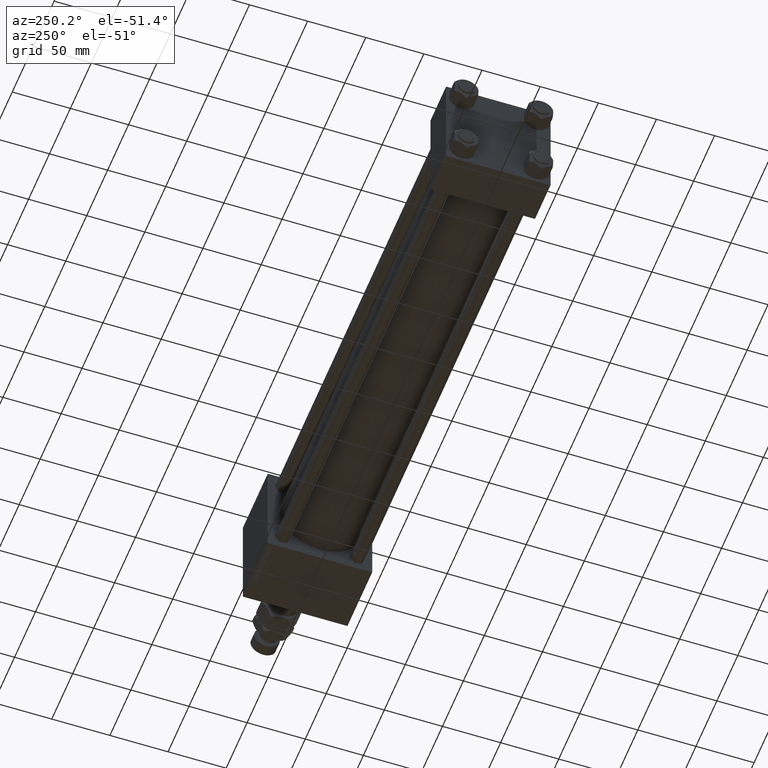
[diagram: clean part render]
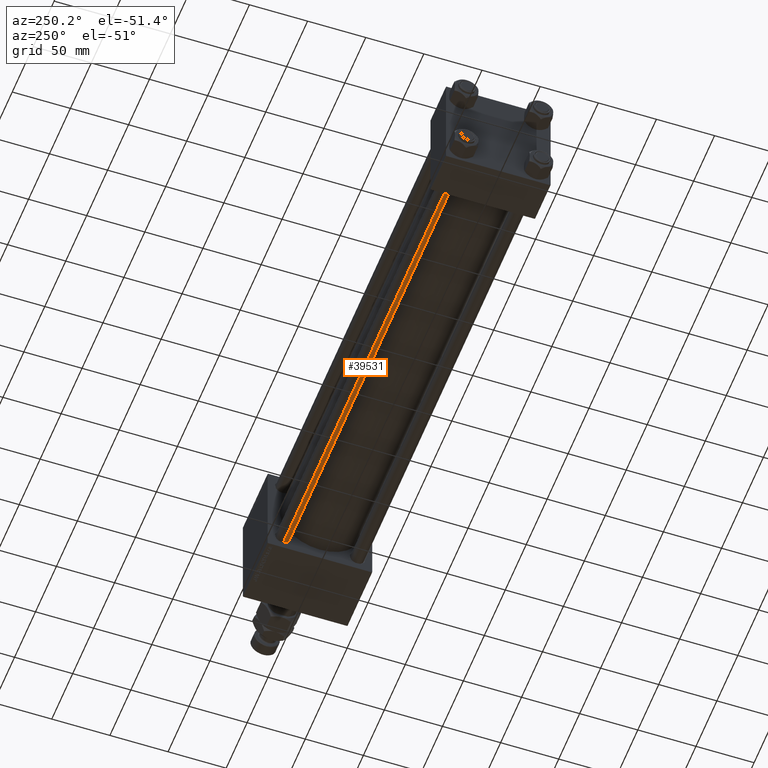
[diagram: same view with one face highlighted and labeled with its STEP entity id]
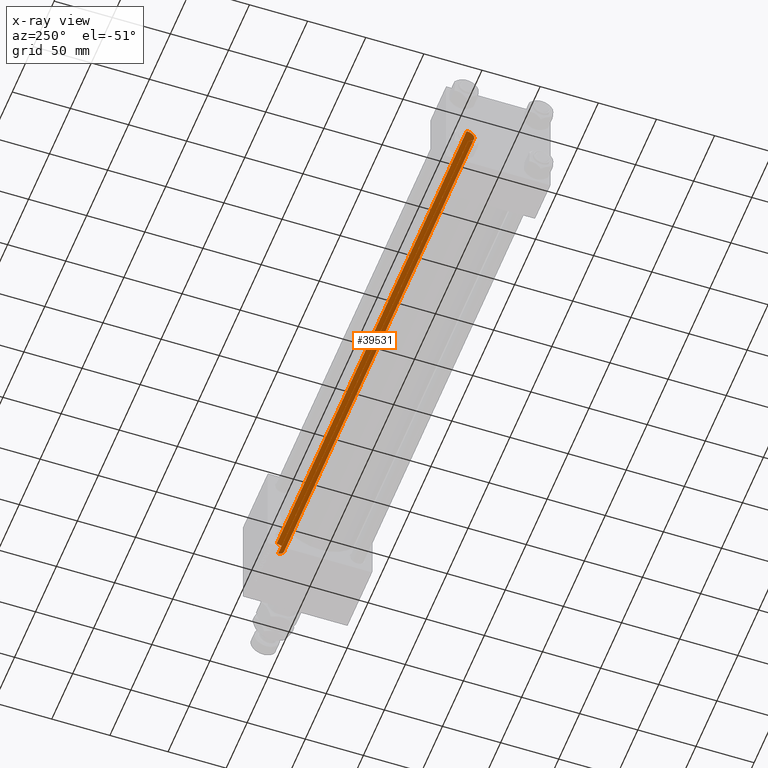
[diagram: x-ray of the same camera — body ghosted, the highlighted face saturated]
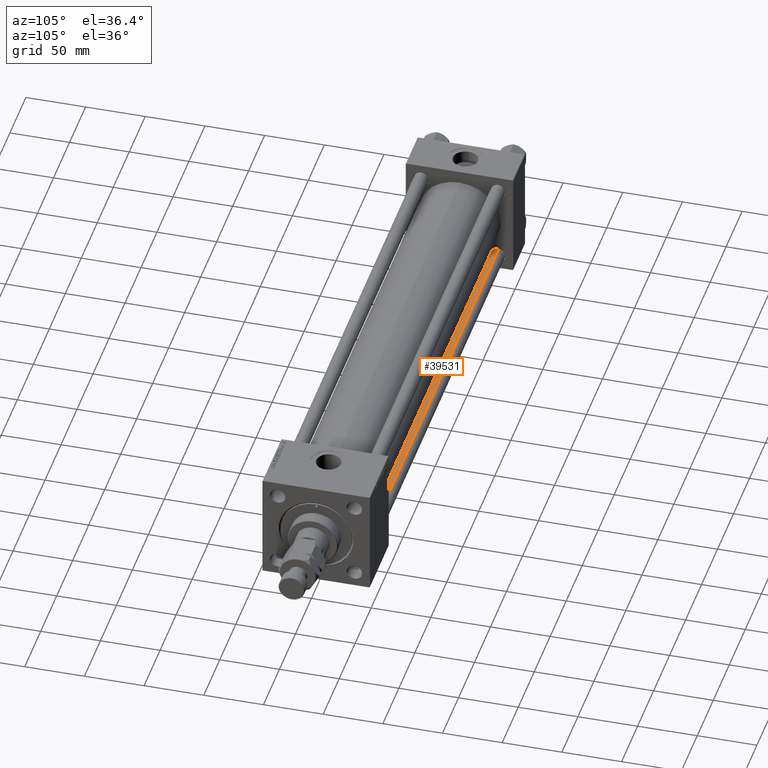
[diagram: same view with one face highlighted and labeled with its STEP entity id]
A machine part, auxiliary view. The second image highlights one B-rep face of the part: STEP entity #39531.
The next image is the same camera in x-ray: the body ghosted, the highlighted face saturated — about 0% of this face is hidden behind the body in this view.
A second angle (auxiliary view) of the same face is appended — the face is thin or edge-on in the first view.
In plain terms, the highlighted cylindrical surface (edge-blend (fillet) strip) has radius 6 mm, axis along (1, -0, 0).
Its self-contained STEP definition (entity closure, byte-faithful):
#307 = ORIENTED_EDGE ( 'NONE', *, *, #12795, .T. ) ;
#1729 = CARTESIAN_POINT ( 'NONE',  ( 6.000000000000000888, 7.347880794884119736E-16, 454.5000000000002842 ) ) ;
#2248 = CARTESIAN_POINT ( 'NONE',  ( 0.000000000000000000, 0.000000000000000000, 454.5000000000002842 ) ) ;
#3019 = VECTOR ( 'NONE', #27652, 1000.000000000000000 ) ;
#4487 = FACE_OUTER_BOUND ( 'NONE', #19361, .T. ) ;
#6741 = AXIS2_PLACEMENT_3D ( 'NONE', #2248, #46989, #10926 ) ;
#10926 = DIRECTION ( 'NONE',  ( 1.000000000000000000, 0.000000000000000000, 0.000000000000000000 ) ) ;
#11101 = CARTESIAN_POINT ( 'NONE',  ( -6.000000000000000888, 0.000000000000000000, 454.5000000000002842 ) ) ;
#12795 = EDGE_CURVE ( 'NONE', #21127, #17995, #25320, .T. ) ;
#13127 = CYLINDRICAL_SURFACE ( 'NONE', #40588, 6.000000000000000888 ) ;
#16083 = AXIS2_PLACEMENT_3D ( 'NONE', #48967, #28965, #48706 ) ;
#17842 = ORIENTED_EDGE ( 'NONE', *, *, #30258, .T. ) ;
#17995 = VERTEX_POINT ( 'NONE', #43548 ) ;
#18417 = LINE ( 'NONE', #34514, #3019 ) ;
#19361 = EDGE_LOOP ( 'NONE', ( #19740, #17842, #37181, #307 ) ) ;
#19740 = ORIENTED_EDGE ( 'NONE', *, *, #49539, .F. ) ;
#20515 = VERTEX_POINT ( 'NONE', #1729 ) ;
#21127 = VERTEX_POINT ( 'NONE', #42565 ) ;
#21811 = VECTOR ( 'NONE', #45993, 1000.000000000000000 ) ;
#24976 = DIRECTION ( 'NONE',  ( -1.000000000000000000, 0.000000000000000000, 0.000000000000000000 ) ) ;
#25320 = CIRCLE ( 'NONE', #16083, 6.000000000000000888 ) ;
#27652 = DIRECTION ( 'NONE',  ( -0.000000000000000000, -0.000000000000000000, -1.000000000000000000 ) ) ;
#28909 = EDGE_CURVE ( 'NONE', #45893, #21127, #29693, .T. ) ;
#28965 = DIRECTION ( 'NONE',  ( -0.000000000000000000, -0.000000000000000000, 1.000000000000000000 ) ) ;
#29425 = CIRCLE ( 'NONE', #6741, 6.000000000000000888 ) ;
#29693 = LINE ( 'NONE', #46251, #21811 ) ;
#30258 = EDGE_CURVE ( 'NONE', #20515, #45893, #29425, .T. ) ;
#34514 = CARTESIAN_POINT ( 'NONE',  ( 6.000000000000000888, 7.347880794884119736E-16, 455.0000000000000000 ) ) ;
#36086 = DIRECTION ( 'NONE',  ( -0.000000000000000000, -0.000000000000000000, -1.000000000000000000 ) ) ;
#37181 = ORIENTED_EDGE ( 'NONE', *, *, #28909, .T. ) ;
#39531 = ADVANCED_FACE ( 'NONE', ( #4487 ), #13127, .T. ) ;
#40543 = CARTESIAN_POINT ( 'NONE',  ( 0.000000000000000000, 0.000000000000000000, 455.0000000000000000 ) ) ;
#40588 = AXIS2_PLACEMENT_3D ( 'NONE', #40543, #36086, #24976 ) ;
#42565 = CARTESIAN_POINT ( 'NONE',  ( -6.000000000000000888, 0.000000000000000000, 0.5000000000002224887 ) ) ;
#43548 = CARTESIAN_POINT ( 'NONE',  ( 6.000000000000000888, 7.347880794884119736E-16, 0.5000000000002224887 ) ) ;
#45893 = VERTEX_POINT ( 'NONE', #11101 ) ;
#45993 = DIRECTION ( 'NONE',  ( -0.000000000000000000, -0.000000000000000000, -1.000000000000000000 ) ) ;
#46251 = CARTESIAN_POINT ( 'NONE',  ( -6.000000000000000888, 0.000000000000000000, 455.0000000000000000 ) ) ;
#46989 = DIRECTION ( 'NONE',  ( 0.000000000000000000, 0.000000000000000000, -1.000000000000000000 ) ) ;
#48706 = DIRECTION ( 'NONE',  ( 1.000000000000000000, 0.000000000000000000, 0.000000000000000000 ) ) ;
#48967 = CARTESIAN_POINT ( 'NONE',  ( 0.000000000000000000, 0.000000000000000000, 0.5000000000002224887 ) ) ;
#49539 = EDGE_CURVE ( 'NONE', #20515, #17995, #18417, .T. ) ;